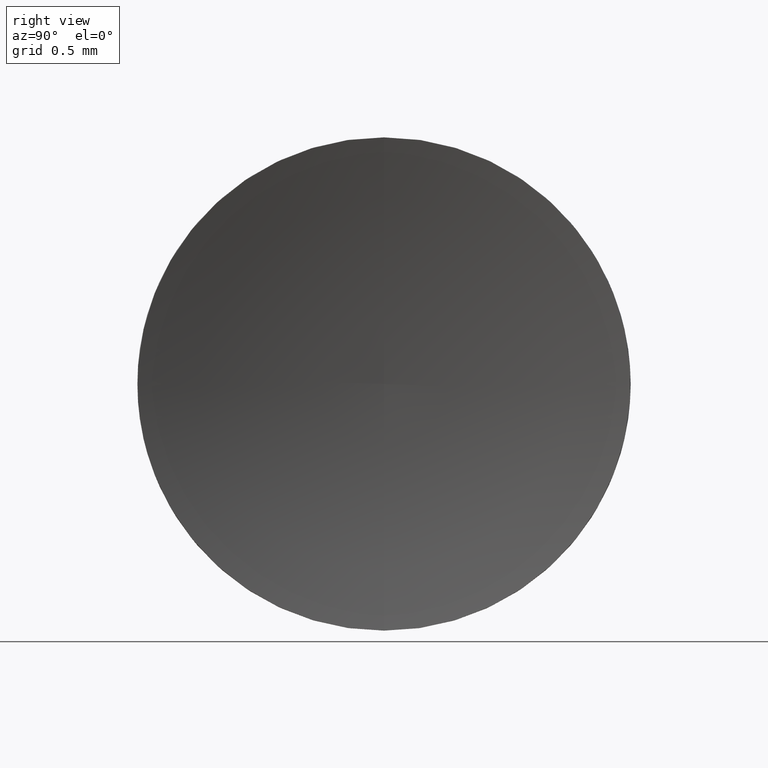
[diagram: clean part render]
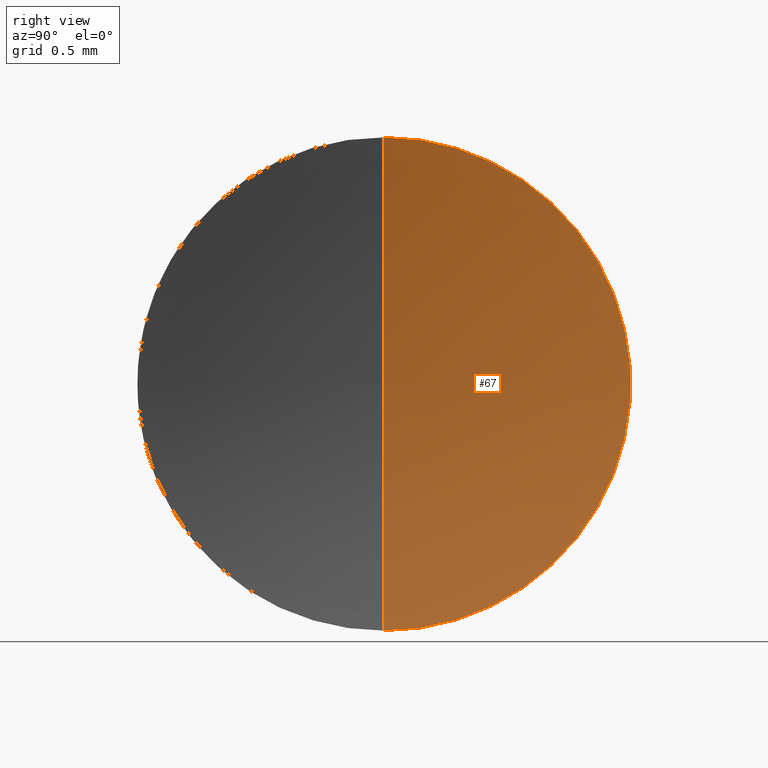
[diagram: same view with one face highlighted and labeled with its STEP entity id]
A machine part, right view. The second image highlights one B-rep face of the part: STEP entity #67.
In plain terms, the highlighted toroidal blend (fillet) surface has major radius 0.0209 mm and minor (blend) radius 6.67 mm.
Its self-contained STEP definition (entity closure, byte-faithful):
#6 = CARTESIAN_POINT ( 'NONE',  ( 12.68015962421213900, 6.522260287298739600, 1.500000000000000200 ) ) ;
#8 = AXIS2_PLACEMENT_3D ( 'NONE', #103, #38, #139 ) ;
#15 = EDGE_CURVE ( 'NONE', #83, #65, #95, .T. ) ;
#32 = AXIS2_PLACEMENT_3D ( 'NONE', #59, #84, #205 ) ;
#36 = AXIS2_PLACEMENT_3D ( 'NONE', #50, #92, #128 ) ;
#38 = DIRECTION ( 'NONE',  ( -1.000000000000000000, -0.0000000000000000000, -0.0000000000000000000 ) ) ;
#50 = CARTESIAN_POINT ( 'NONE',  ( 19.18408597058988400, 6.522260287298739600, 0.02086441429682405600 ) ) ;
#59 = CARTESIAN_POINT ( 'NONE',  ( 19.18408597058988400, 6.522260287298739600, -0.02086441429682405600 ) ) ;
#65 = VERTEX_POINT ( 'NONE', #158 ) ;
#67 = ADVANCED_FACE ( 'NONE', ( #145 ), #187, .F. ) ;
#76 = ORIENTED_EDGE ( 'NONE', *, *, #15, .T. ) ;
#83 = VERTEX_POINT ( 'NONE', #6 ) ;
#84 = DIRECTION ( 'NONE',  ( -0.0000000000000000000, 1.000000000000000000, 1.224646799147353200E-016 ) ) ;
#85 = EDGE_CURVE ( 'NONE', #83, #125, #172, .T. ) ;
#90 = AXIS2_PLACEMENT_3D ( 'NONE', #154, #189, #175 ) ;
#92 = DIRECTION ( 'NONE',  ( 0.0000000000000000000, -1.000000000000000000, 0.0000000000000000000 ) ) ;
#94 = CIRCLE ( 'NONE', #32, 6.670000000000000800 ) ;
#95 = CIRCLE ( 'NONE', #36, 6.670000000000000800 ) ;
#103 = CARTESIAN_POINT ( 'NONE',  ( 19.18408597058988400, 6.522260287298739600, 0.0000000000000000000 ) ) ;
#109 = ORIENTED_EDGE ( 'NONE', *, *, #130, .F. ) ;
#114 = CARTESIAN_POINT ( 'NONE',  ( 12.68015962421213900, 6.522260287298739600, -1.500000000000000200 ) ) ;
#125 = VERTEX_POINT ( 'NONE', #114 ) ;
#128 = DIRECTION ( 'NONE',  ( 0.0000000000000000000, 0.0000000000000000000, -1.000000000000000000 ) ) ;
#130 = EDGE_CURVE ( 'NONE', #125, #65, #94, .T. ) ;
#139 = DIRECTION ( 'NONE',  ( 0.0000000000000000000, 0.0000000000000000000, 1.000000000000000000 ) ) ;
#142 = EDGE_LOOP ( 'NONE', ( #109, #200, #76 ) ) ;
#145 = FACE_OUTER_BOUND ( 'NONE', #142, .T. ) ;
#154 = CARTESIAN_POINT ( 'NONE',  ( 12.68015962421213900, 6.522260287298739600, 0.0000000000000000000 ) ) ;
#158 = CARTESIAN_POINT ( 'NONE',  ( 12.51411860363702300, 6.522260287298739600, 0.0000000000000000000 ) ) ;
#172 = CIRCLE ( 'NONE', #90, 1.500000000000000400 ) ;
#175 = DIRECTION ( 'NONE',  ( 0.0000000000000000000, 0.0000000000000000000, 1.000000000000000000 ) ) ;
#187 = TOROIDAL_SURFACE ( 'NONE', #8, 0.02086441429682405600, 6.670000000000000800 ) ;
#189 = DIRECTION ( 'NONE',  ( -1.000000000000000000, -0.0000000000000000000, -0.0000000000000000000 ) ) ;
#200 = ORIENTED_EDGE ( 'NONE', *, *, #85, .F. ) ;
#205 = DIRECTION ( 'NONE',  ( 0.0000000000000000000, -1.300392410777216600E-016, 1.000000000000000000 ) ) ;